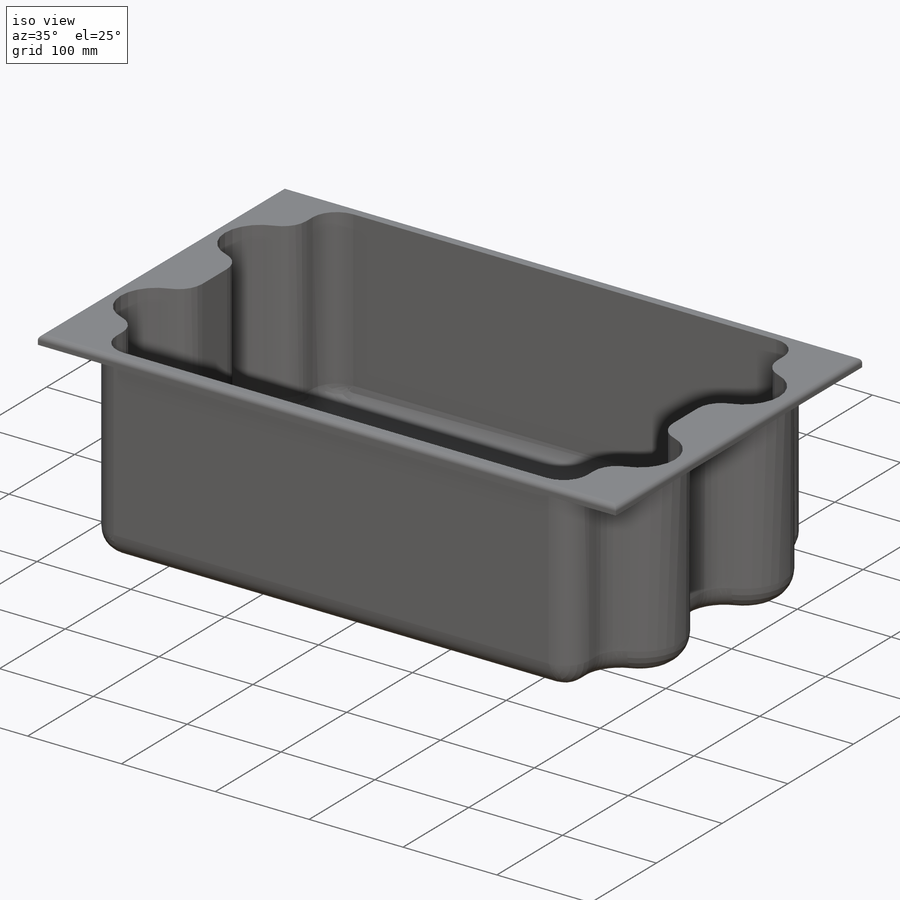
[diagram: iso view]
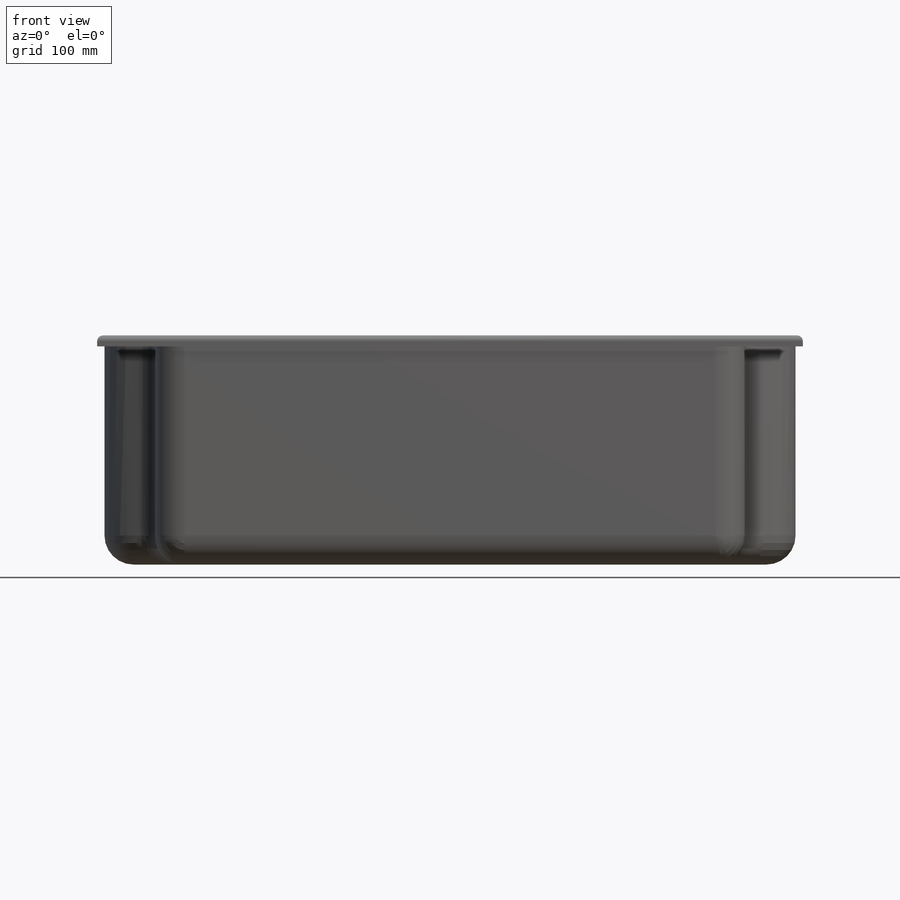
[diagram: front view]
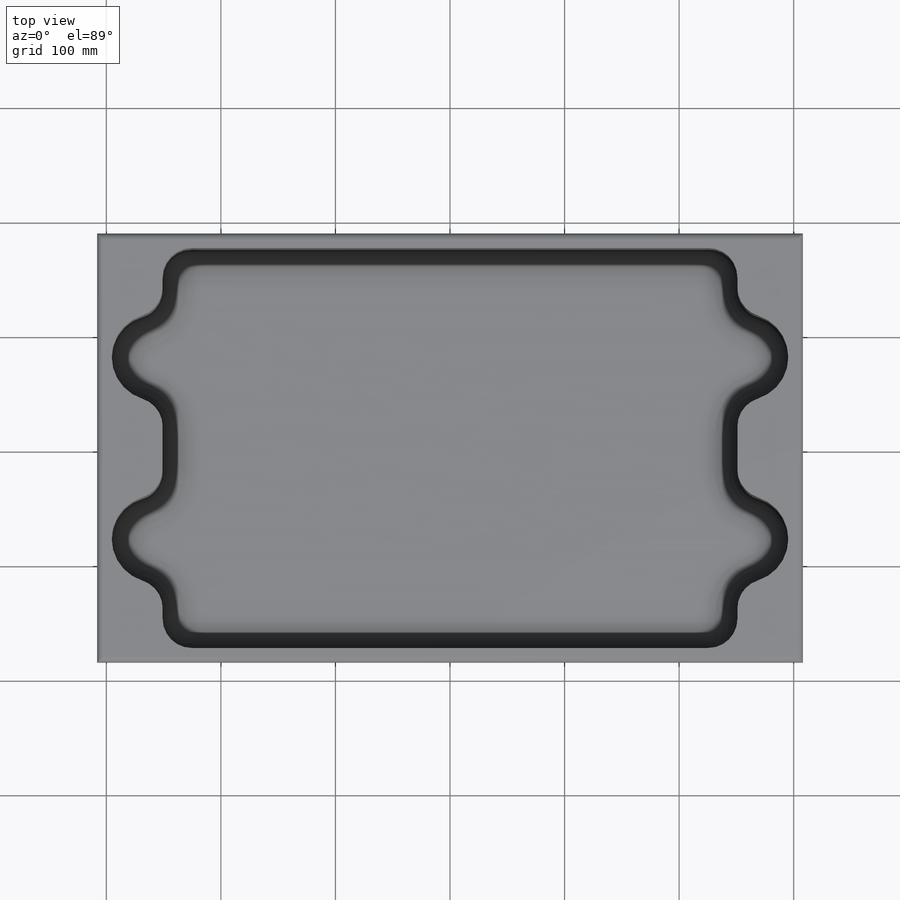
[diagram: top view]
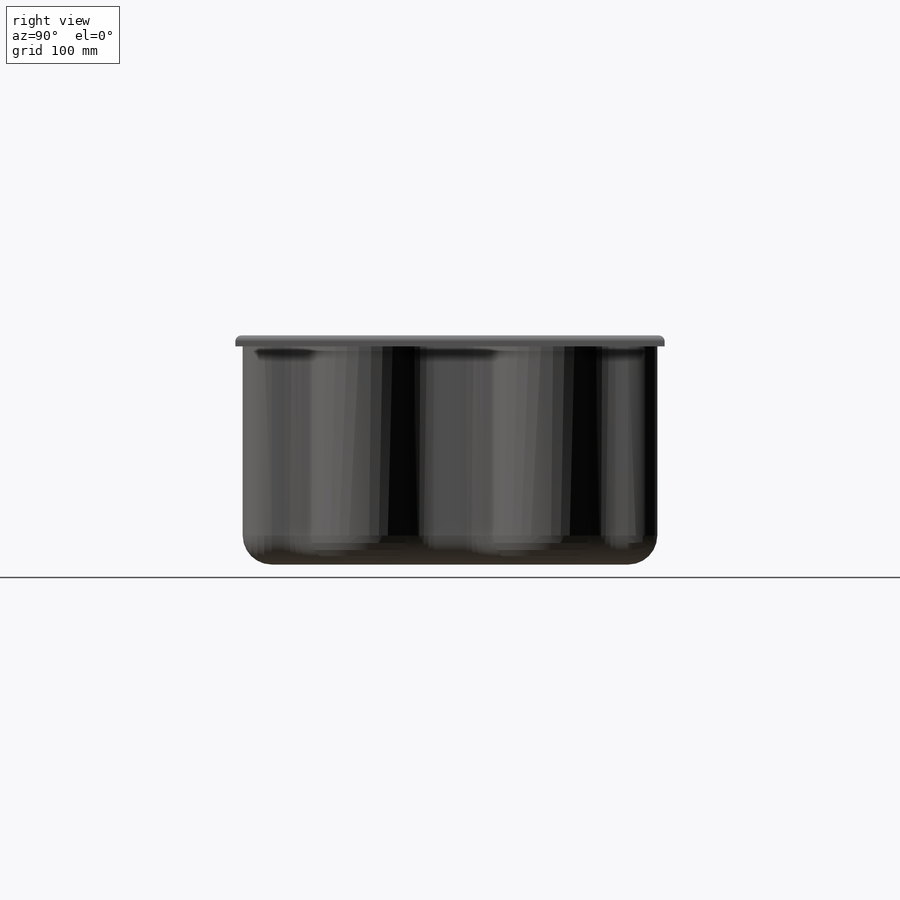
[diagram: right view]
SOLIDWORKS PART (.sldprt)
format: sldprt  version: not decoded by parser v0  size: 509,440 bytes
history: native  units: mm
features: fillet x5, sketch x4, cut_extrude x3, mirror x2, material x1, extrude x1 (+13 scaffold rows collapsed)
feature tree (29):
  scaffold x13  (default folders/planes/origin — collapsed)
  material  "Material <not specified>"
  sketch  "Sketch1"  dims[c1.D1=~44.835505mm c1.D2=~124.670153mm c2.D1=615.95mm c2.D2=374.65mm]
  extrude  "Boss-Extrude1"  Depth=200.025mm
  sketch  "Sketch2"  dims[c1.D4=~42.393544mm c1.D1=~342.512918mm c1.D2=~582.070086mm c2.D1=514.35mm c2.D2=349.25mm c2.D3=6.35mm c2.D4=50.8mm c2.D5=69.85mm]
  cut_extrude  "Cut-Extrude1"  Depth=190.5mm
  mirror  "Mirror1"
  sketch  "Sketch3"  dims[c1.D1=~12.193769mm c1.D2=514.35mm c2.D1=6.35mm]
  cut_extrude  "Cut-Extrude2"  Depth=190.5mm
  mirror  "Mirror2"
  sketch  "Sketch5"  dims[c1.D1=3.175mm c1.D2=2.54mm c2.D1=6.35mm]
  cut_extrude  "Cut-Extrude3"  Depth=190.5mm
  fillet  "Fillet1"  Radius=25.4mm
  fillet  "Fillet2"  Radius=25.4mm
  fillet  "Fillet3"  Radius=25.4mm
  fillet  "Fillet4"  Radius=25.4mm
  fillet  "Fillet5"  Radius=5.08mm
decode coverage: 13 of 15 modeling features carry decoded parameters
note: ~ marks probable driven/reference dimensions
note: suppression state not decoded; provenance and decode notes live in map.json
